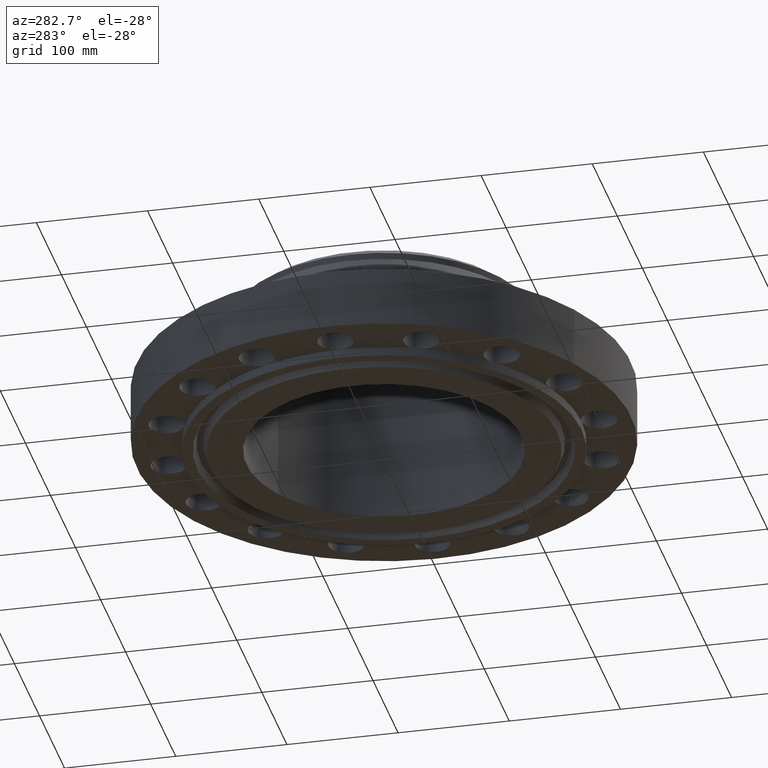
[diagram: clean part render]
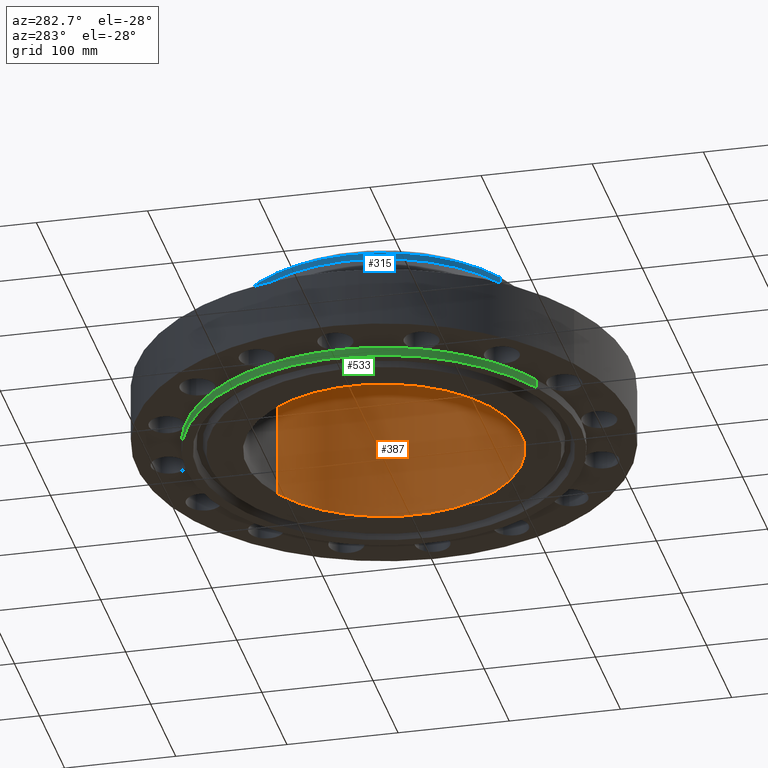
[diagram: same view with three faces highlighted in distinct colors, each labeled with its STEP entity id]
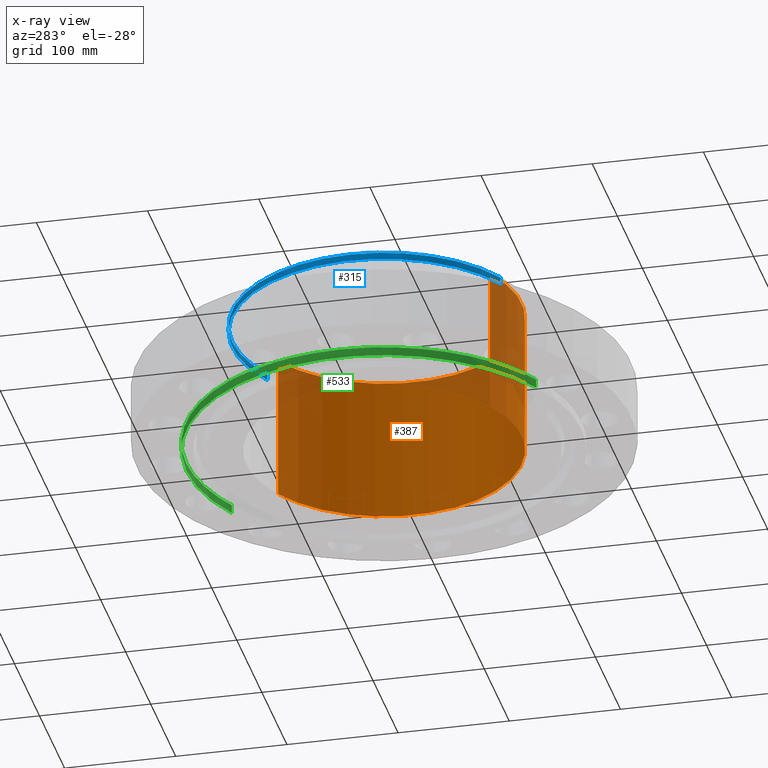
[diagram: x-ray of the same camera — body ghosted, the three highlighted faces saturated]
A machine part, auxiliary view with three faces highlighted in distinct colors.
The next image is the same camera in x-ray (body ghosted, the three faces saturated) — at least one of them is partly hidden behind the body in this view.
Their STEP definitions:

[orange] entity #387 — the highlighted cylindrical surface (partial cylindrical patch) has radius 123.825 mm, axis along (0, 0, -1).
#351=AXIS2_PLACEMENT_3D('Cylinder Axis2P3D',#348,#349,#350) ;
#355=AXIS2_PLACEMENT_3D('Circle Axis2P3D',#353,#354,$) ;
#371=AXIS2_PLACEMENT_3D('Circle Axis2P3D',#369,#370,$) ;
#348=CARTESIAN_POINT('Axis2P3D Location',(0.,0.,2.28350000001)) ;
#353=CARTESIAN_POINT('Axis2P3D Location',(0.,0.,4.88000000002)) ;
#357=CARTESIAN_POINT('Vertex',(2.3371995007,4.27821498923,4.88000000002)) ;
#359=CARTESIAN_POINT('Vertex',(-2.3371995007,-4.27821498923,4.88000000002)) ;
#362=CARTESIAN_POINT('Line Origine',(2.3371995007,4.27821498923,2.28350000001)) ;
#366=CARTESIAN_POINT('Vertex',(2.3371995007,4.27821498923,-0.313000000001)) ;
#369=CARTESIAN_POINT('Axis2P3D Location',(0.,0.,-0.313000000001)) ;
#373=CARTESIAN_POINT('Vertex',(-2.3371995007,-4.27821498923,-0.313000000001)) ;
#376=CARTESIAN_POINT('Line Origine',(-2.3371995007,-4.27821498923,2.28350000001)) ;
#349=DIRECTION('Axis2P3D Direction',(0.,0.,-0.0393700787402)) ;
#350=DIRECTION('Axis2P3D XDirection',(-0.0188750212049,-0.0345504945626,0.)) ;
#354=DIRECTION('Axis2P3D Direction',(0.,0.,-0.0393700787402)) ;
#363=DIRECTION('Vector Direction',(0.,0.,-0.0393700787402)) ;
#370=DIRECTION('Axis2P3D Direction',(0.,0.,-0.0393700787402)) ;
#377=DIRECTION('Vector Direction',(0.,0.,-0.0393700787402)) ;
#364=VECTOR('Line Direction',#363,0.0393700787402) ;
#378=VECTOR('Line Direction',#377,0.0393700787402) ;
#382=ORIENTED_EDGE('',*,*,#361,.F.) ;
#383=ORIENTED_EDGE('',*,*,#368,.T.) ;
#384=ORIENTED_EDGE('',*,*,#375,.T.) ;
#385=ORIENTED_EDGE('',*,*,#380,.F.) ;
#387=ADVANCED_FACE('PartBody',(#386),#352,.F.) ;
#356=CIRCLE('generated circle',#355,4.87500000002) ;
#372=CIRCLE('generated circle',#371,4.87500000002) ;
#352=CYLINDRICAL_SURFACE('generated cylinder',#351,4.87500000002) ;
#361=EDGE_CURVE('',#358,#360,#356,.T.) ;
#368=EDGE_CURVE('',#358,#367,#365,.T.) ;
#375=EDGE_CURVE('',#367,#374,#372,.T.) ;
#380=EDGE_CURVE('',#360,#374,#379,.T.) ;
#381=EDGE_LOOP('',(#382,#383,#384,#385)) ;
#386=FACE_OUTER_BOUND('',#381,.T.) ;
#365=LINE('Line',#362,#364) ;
#379=LINE('Line',#376,#378) ;
#358=VERTEX_POINT('',#357) ;
#360=VERTEX_POINT('',#359) ;
#367=VERTEX_POINT('',#366) ;
#374=VERTEX_POINT('',#373) ;

[blue] entity #315 — the highlighted cylindrical surface (partial cylindrical patch) has radius 136.525 mm, axis along (0, 0, -1).
#247=AXIS2_PLACEMENT_3D('Circle Axis2P3D',#245,#246,$) ;
#260=AXIS2_PLACEMENT_3D('Cylinder Axis2P3D',#257,#258,#259) ;
#298=AXIS2_PLACEMENT_3D('Circle Axis2P3D',#296,#297,$) ;
#305=AXIS2_PLACEMENT_3D('Circle Axis2P3D',#303,#304,$) ;
#223=CARTESIAN_POINT('Vertex',(2.57691227001,4.71700627018,4.32053548146)) ;
#230=CARTESIAN_POINT('Vertex',(-2.57691227001,-4.71700627018,4.32053548146)) ;
#245=CARTESIAN_POINT('Axis2P3D Location',(0.,0.,4.32053548146)) ;
#257=CARTESIAN_POINT('Axis2P3D Location',(0.,0.,2.28350000001)) ;
#262=CARTESIAN_POINT('Line Origine',(-2.57691227001,-4.71700627018,4.43864571768)) ;
#266=CARTESIAN_POINT('Vertex',(-2.57691227001,-4.71700627018,4.5567559539)) ;
#269=CARTESIAN_POINT('Line Origine',(2.57691227001,4.71700627018,4.43864571768)) ;
#273=CARTESIAN_POINT('Vertex',(2.57691227001,4.71700627018,4.5567559539)) ;
#296=CARTESIAN_POINT('Axis2P3D Location',(0.,0.,4.5567559539)) ;
#300=CARTESIAN_POINT('Vertex',(-2.57691227001,4.71700627018,4.5567559539)) ;
#303=CARTESIAN_POINT('Axis2P3D Location',(0.,0.,4.5567559539)) ;
#246=DIRECTION('Axis2P3D Direction',(0.,0.,-0.0393700787402)) ;
#258=DIRECTION('Axis2P3D Direction',(0.,0.,-0.0393700787402)) ;
#259=DIRECTION('Axis2P3D XDirection',(-0.0188750212049,-0.0345504945626,0.)) ;
#263=DIRECTION('Vector Direction',(0.,0.,-0.0393700787402)) ;
#270=DIRECTION('Vector Direction',(0.,0.,-0.0393700787402)) ;
#297=DIRECTION('Axis2P3D Direction',(0.,0.,-0.0393700787402)) ;
#304=DIRECTION('Axis2P3D Direction',(0.,0.,-0.0393700787402)) ;
#264=VECTOR('Line Direction',#263,0.0393700787402) ;
#271=VECTOR('Line Direction',#270,0.0393700787402) ;
#309=ORIENTED_EDGE('',*,*,#275,.F.) ;
#310=ORIENTED_EDGE('',*,*,#249,.F.) ;
#311=ORIENTED_EDGE('',*,*,#268,.T.) ;
#312=ORIENTED_EDGE('',*,*,#302,.F.) ;
#313=ORIENTED_EDGE('',*,*,#307,.T.) ;
#315=ADVANCED_FACE('PartBody',(#314),#261,.T.) ;
#248=CIRCLE('generated circle',#247,5.37500000002) ;
#299=CIRCLE('generated circle',#298,5.37500000002) ;
#306=CIRCLE('generated circle',#305,5.37500000002) ;
#261=CYLINDRICAL_SURFACE('generated cylinder',#260,5.37500000002) ;
#249=EDGE_CURVE('',#231,#224,#248,.T.) ;
#268=EDGE_CURVE('',#231,#267,#265,.F.) ;
#275=EDGE_CURVE('',#224,#274,#272,.F.) ;
#302=EDGE_CURVE('',#301,#267,#299,.F.) ;
#307=EDGE_CURVE('',#301,#274,#306,.T.) ;
#308=EDGE_LOOP('',(#309,#310,#311,#312,#313)) ;
#314=FACE_OUTER_BOUND('',#308,.T.) ;
#265=LINE('Line',#262,#264) ;
#272=LINE('Line',#269,#271) ;
#224=VERTEX_POINT('',#223) ;
#231=VERTEX_POINT('',#230) ;
#267=VERTEX_POINT('',#266) ;
#274=VERTEX_POINT('',#273) ;
#301=VERTEX_POINT('',#300) ;

[green] entity #533 — the highlighted cylindrical surface (partial cylindrical patch) has radius 177.8 mm, axis along (0, 0, -1).
#435=AXIS2_PLACEMENT_3D('Cylinder Axis2P3D',#432,#433,#434) ;
#439=AXIS2_PLACEMENT_3D('Circle Axis2P3D',#437,#438,$) ;
#455=AXIS2_PLACEMENT_3D('Circle Axis2P3D',#453,#454,$) ;
#462=AXIS2_PLACEMENT_3D('Circle Axis2P3D',#460,#461,$) ;
#469=AXIS2_PLACEMENT_3D('Circle Axis2P3D',#467,#468,$) ;
#476=AXIS2_PLACEMENT_3D('Circle Axis2P3D',#474,#475,$) ;
#483=AXIS2_PLACEMENT_3D('Circle Axis2P3D',#481,#482,$) ;
#490=AXIS2_PLACEMENT_3D('Circle Axis2P3D',#488,#489,$) ;
#497=AXIS2_PLACEMENT_3D('Circle Axis2P3D',#495,#496,$) ;
#502=AXIS2_PLACEMENT_3D('Circle Axis2P3D',#500,#501,$) ;
#509=AXIS2_PLACEMENT_3D('Circle Axis2P3D',#507,#508,$) ;
#79=CARTESIAN_POINT('Vertex',(-3.00038465792E-015,7.00000000003,8.39223703654E-016)) ;
#432=CARTESIAN_POINT('Axis2P3D Location',(0.,0.,2.28350000001)) ;
#437=CARTESIAN_POINT('Axis2P3D Location',(0.,0.,-0.313000000001)) ;
#441=CARTESIAN_POINT('Vertex',(-3.35597877024,-6.14307793326,-0.313000000001)) ;
#443=CARTESIAN_POINT('Vertex',(3.35597877024,6.14307793326,-0.313000000001)) ;
#446=CARTESIAN_POINT('Line Origine',(-3.35597877024,-6.14307793326,-0.156500000001)) ;
#450=CARTESIAN_POINT('Vertex',(-3.35597877024,-6.14307793326,8.39223703654E-016)) ;
#453=CARTESIAN_POINT('Axis2P3D Location',(0.,0.,8.39223703654E-016)) ;
#457=CARTESIAN_POINT('Vertex',(-4.94974746833,-4.94974746833,0.)) ;
#460=CARTESIAN_POINT('Axis2P3D Location',(0.,0.,8.39223703654E-016)) ;
#464=CARTESIAN_POINT('Vertex',(-6.4671567276,-2.67878402657,0.)) ;
#467=CARTESIAN_POINT('Axis2P3D Location',(0.,0.,8.39223703654E-016)) ;
#471=CARTESIAN_POINT('Vertex',(-7.00000000003,-2.23792987641E-015,0.)) ;
#474=CARTESIAN_POINT('Axis2P3D Location',(0.,0.,8.39223703654E-016)) ;
#478=CARTESIAN_POINT('Vertex',(-6.4671567276,2.67878402657,0.)) ;
#481=CARTESIAN_POINT('Axis2P3D Location',(0.,0.,8.39223703654E-016)) ;
#485=CARTESIAN_POINT('Vertex',(-4.94974746833,4.94974746833,0.)) ;
#488=CARTESIAN_POINT('Axis2P3D Location',(0.,0.,8.39223703654E-016)) ;
#492=CARTESIAN_POINT('Vertex',(-2.67878402657,6.4671567276,0.)) ;
#495=CARTESIAN_POINT('Axis2P3D Location',(0.,0.,8.39223703654E-016)) ;
#500=CARTESIAN_POINT('Axis2P3D Location',(0.,0.,8.39223703654E-016)) ;
#504=CARTESIAN_POINT('Vertex',(2.67878402657,6.4671567276,0.)) ;
#507=CARTESIAN_POINT('Axis2P3D Location',(0.,0.,8.39223703654E-016)) ;
#511=CARTESIAN_POINT('Vertex',(3.35597877024,6.14307793326,8.39223703654E-016)) ;
#514=CARTESIAN_POINT('Line Origine',(3.35597877024,6.14307793326,-0.156500000001)) ;
#433=DIRECTION('Axis2P3D Direction',(0.,0.,-0.0393700787402)) ;
#434=DIRECTION('Axis2P3D XDirection',(0.0188750212049,0.0345504945626,0.)) ;
#438=DIRECTION('Axis2P3D Direction',(0.,0.,-0.0393700787402)) ;
#447=DIRECTION('Vector Direction',(0.,0.,-0.0393700787402)) ;
#454=DIRECTION('Axis2P3D Direction',(0.,0.,-0.0393700787402)) ;
#461=DIRECTION('Axis2P3D Direction',(0.,0.,-0.0393700787402)) ;
#468=DIRECTION('Axis2P3D Direction',(0.,0.,-0.0393700787402)) ;
#475=DIRECTION('Axis2P3D Direction',(0.,0.,-0.0393700787402)) ;
#482=DIRECTION('Axis2P3D Direction',(0.,0.,-0.0393700787402)) ;
#489=DIRECTION('Axis2P3D Direction',(0.,0.,-0.0393700787402)) ;
#496=DIRECTION('Axis2P3D Direction',(0.,0.,-0.0393700787402)) ;
#501=DIRECTION('Axis2P3D Direction',(0.,0.,-0.0393700787402)) ;
#508=DIRECTION('Axis2P3D Direction',(0.,0.,-0.0393700787402)) ;
#515=DIRECTION('Vector Direction',(0.,0.,-0.0393700787402)) ;
#448=VECTOR('Line Direction',#447,0.0393700787402) ;
#516=VECTOR('Line Direction',#515,0.0393700787402) ;
#520=ORIENTED_EDGE('',*,*,#445,.F.) ;
#521=ORIENTED_EDGE('',*,*,#452,.T.) ;
#522=ORIENTED_EDGE('',*,*,#459,.T.) ;
#523=ORIENTED_EDGE('',*,*,#466,.T.) ;
#524=ORIENTED_EDGE('',*,*,#473,.T.) ;
#525=ORIENTED_EDGE('',*,*,#480,.T.) ;
#526=ORIENTED_EDGE('',*,*,#487,.T.) ;
#527=ORIENTED_EDGE('',*,*,#494,.T.) ;
#528=ORIENTED_EDGE('',*,*,#499,.T.) ;
#529=ORIENTED_EDGE('',*,*,#506,.T.) ;
#530=ORIENTED_EDGE('',*,*,#513,.T.) ;
#531=ORIENTED_EDGE('',*,*,#518,.F.) ;
#533=ADVANCED_FACE('PartBody',(#532),#436,.T.) ;
#440=CIRCLE('generated circle',#439,7.00000000003) ;
#456=CIRCLE('generated circle',#455,7.00000000003) ;
#463=CIRCLE('generated circle',#462,7.00000000003) ;
#470=CIRCLE('generated circle',#469,7.00000000003) ;
#477=CIRCLE('generated circle',#476,7.00000000003) ;
#484=CIRCLE('generated circle',#483,7.00000000003) ;
#491=CIRCLE('generated circle',#490,7.00000000003) ;
#498=CIRCLE('generated circle',#497,7.00000000003) ;
#503=CIRCLE('generated circle',#502,7.00000000003) ;
#510=CIRCLE('generated circle',#509,7.00000000003) ;
#436=CYLINDRICAL_SURFACE('generated cylinder',#435,7.00000000003) ;
#445=EDGE_CURVE('',#442,#444,#440,.T.) ;
#452=EDGE_CURVE('',#442,#451,#449,.F.) ;
#459=EDGE_CURVE('',#451,#458,#456,.T.) ;
#466=EDGE_CURVE('',#458,#465,#463,.T.) ;
#473=EDGE_CURVE('',#465,#472,#470,.T.) ;
#480=EDGE_CURVE('',#472,#479,#477,.T.) ;
#487=EDGE_CURVE('',#479,#486,#484,.T.) ;
#494=EDGE_CURVE('',#486,#493,#491,.T.) ;
#499=EDGE_CURVE('',#493,#80,#498,.T.) ;
#506=EDGE_CURVE('',#80,#505,#503,.T.) ;
#513=EDGE_CURVE('',#505,#512,#510,.T.) ;
#518=EDGE_CURVE('',#444,#512,#517,.F.) ;
#519=EDGE_LOOP('',(#520,#521,#522,#523,#524,#525,#526,#527,#528,#529,#530,#531)) ;
#532=FACE_OUTER_BOUND('',#519,.T.) ;
#449=LINE('Line',#446,#448) ;
#517=LINE('Line',#514,#516) ;
#80=VERTEX_POINT('',#79) ;
#442=VERTEX_POINT('',#441) ;
#444=VERTEX_POINT('',#443) ;
#451=VERTEX_POINT('',#450) ;
#458=VERTEX_POINT('',#457) ;
#465=VERTEX_POINT('',#464) ;
#472=VERTEX_POINT('',#471) ;
#479=VERTEX_POINT('',#478) ;
#486=VERTEX_POINT('',#485) ;
#493=VERTEX_POINT('',#492) ;
#505=VERTEX_POINT('',#504) ;
#512=VERTEX_POINT('',#511) ;